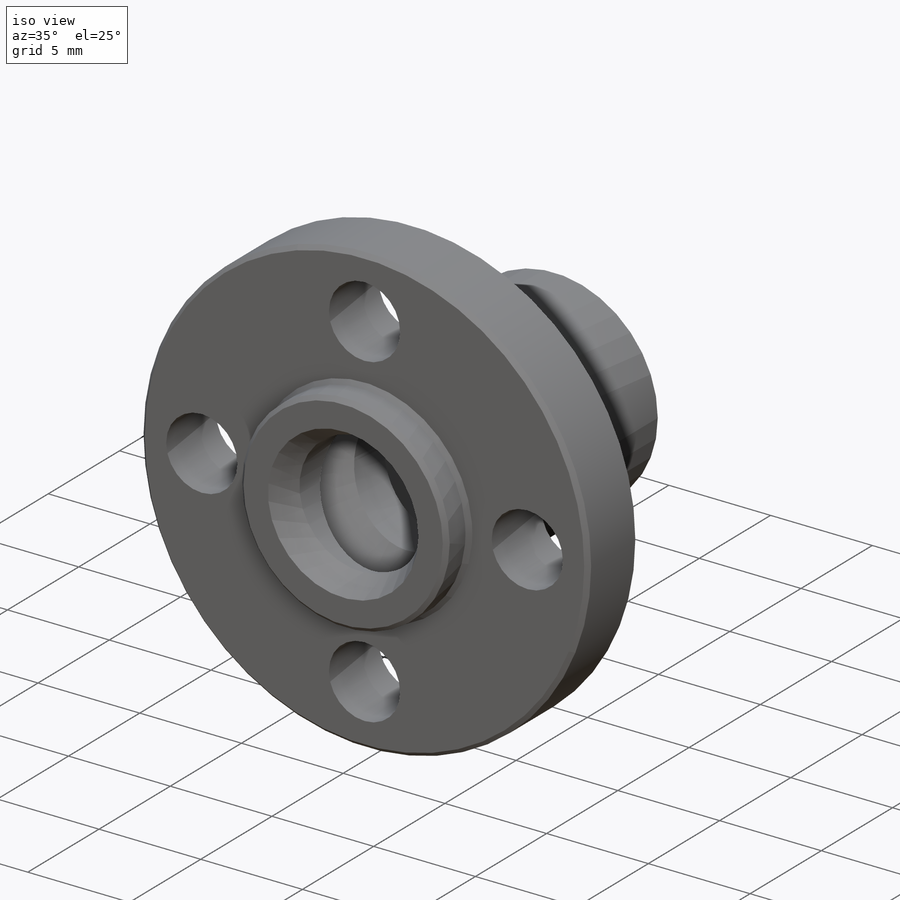
[diagram: iso view]
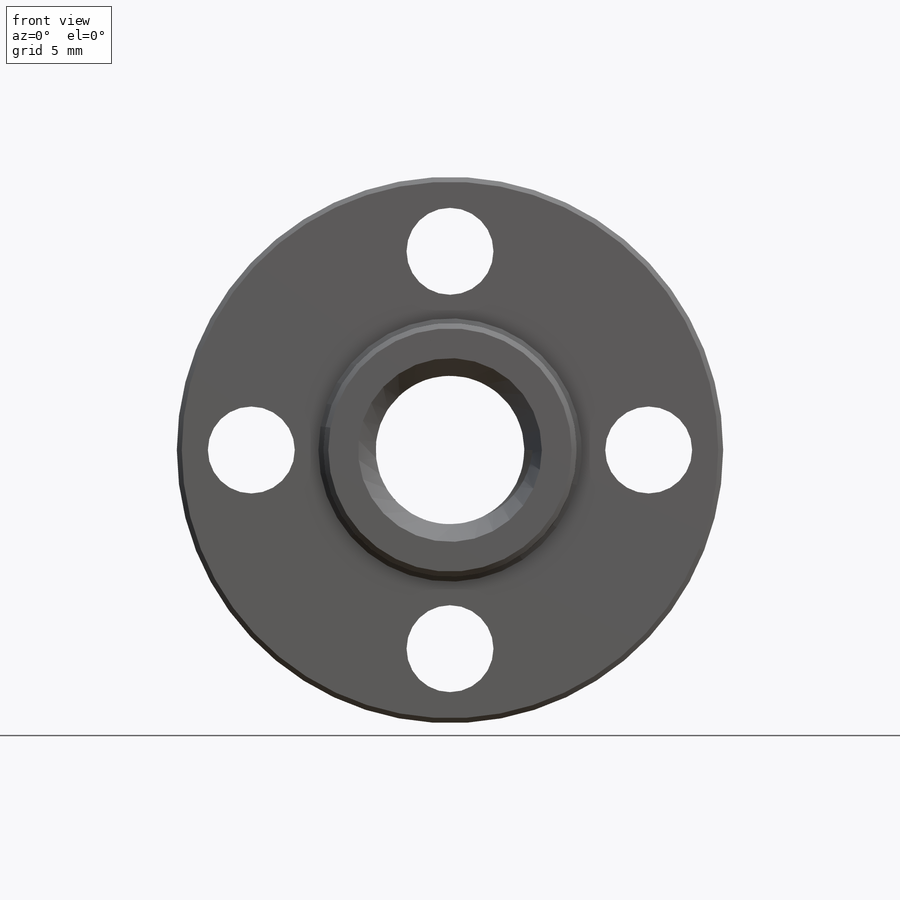
[diagram: front view]
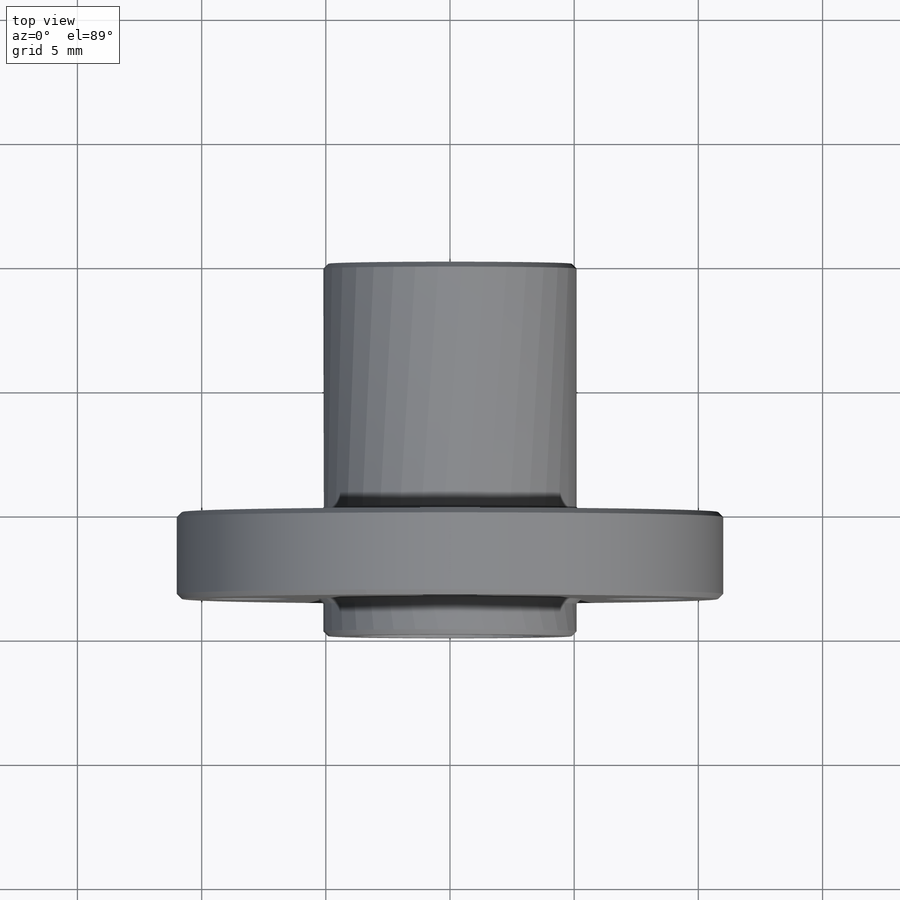
[diagram: top view]
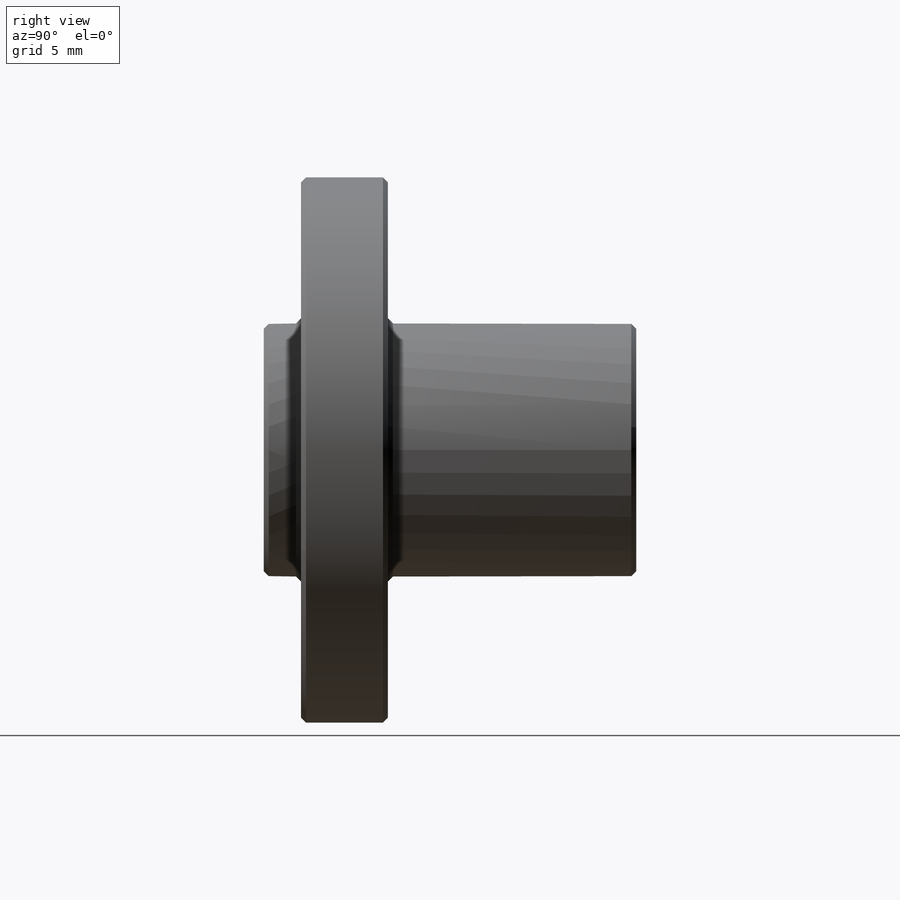
[diagram: right view]
SOLIDWORKS PART (.sldprt)
format: sldprt  version: not decoded by parser v0  size: 546,816 bytes
history: native  units: mm
features: plane x3, extrude x2, chamfer x2, material x1, sketch x1, helix x1, sweep x1 + 3 further entries (+9 scaffold rows collapsed)
feature tree (23):
  scaffold x9  (default folders/planes/origin — collapsed)
  material  "Matériau <non spécifié>"
  plane  "Plan de face"
  plane  "Plan de dessus"
  plane  "Plan de droite"
  sketch  "Esquisse1"  dims[D1=22.0mm D2=16.0mm D3=10.2mm D4=3.5mm D5=4.0]
  extrude  "Boss.-Extru.1"  Depth=3.5mm
  "Esquisse2"
  extrude  "Boss.-Extru.2"  Depth=1.5mm
  chamfer  "Chanfrein2"  Distance=0.7mm Angle=60deg
  "Esquisse5"
  helix  "Hélice/Spirale1"  Pitch=25mm
  "Esquisse6"
  sweep  "Enlèvement de matière-Balayage1"
  chamfer  "Chanfrein3"  Distance=0.2mm Angle=45deg
decode coverage: 6 of 7 modeling features carry decoded parameters; 3 rows unclassified (native names shown)
note: suppression state not decoded; provenance and decode notes live in map.json
